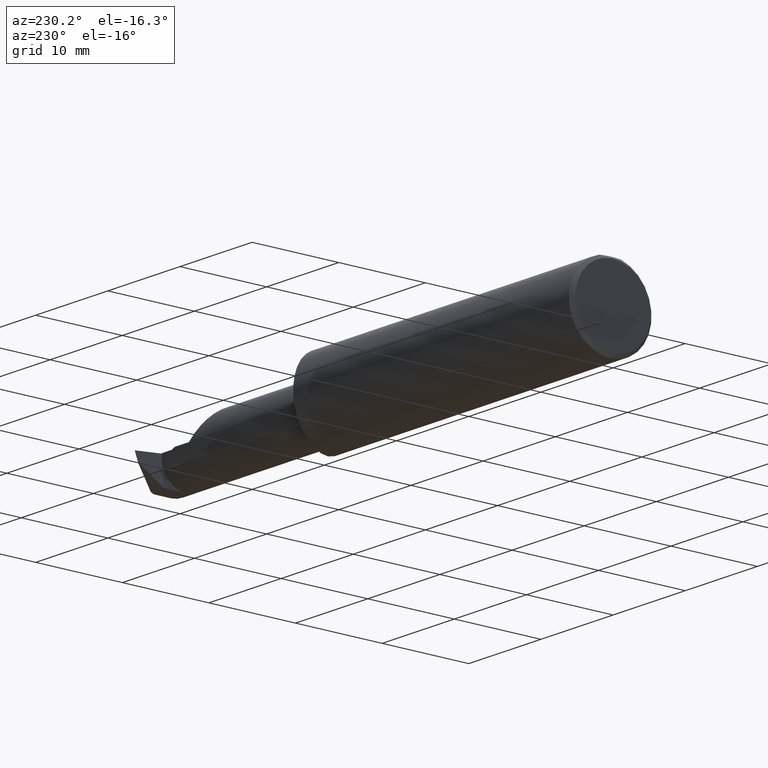
[diagram: clean part render]
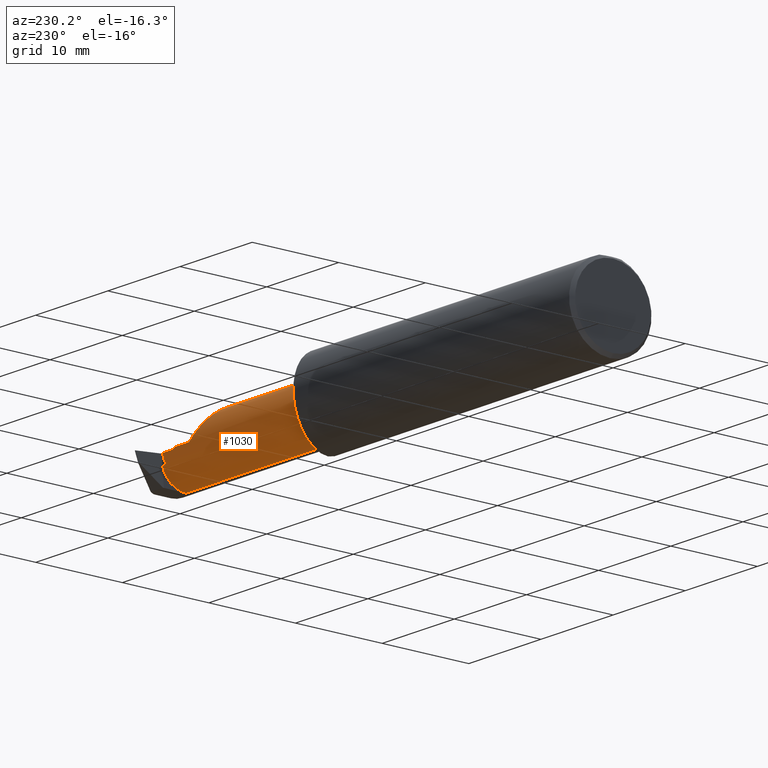
[diagram: same view with one face highlighted and labeled with its STEP entity id]
A machine part, auxiliary view. The second image highlights one B-rep face of the part: STEP entity #1030.
In plain terms, the highlighted cylindrical surface (edge-blend (fillet) strip) has radius 3.175 mm, axis along (-1, -0, -0).
Its self-contained STEP definition (entity closure, byte-faithful):
#5 = LINE ( 'NONE', #333, #228 ) ;
#11 = VERTEX_POINT ( 'NONE', #324 ) ;
#16 = VECTOR ( 'NONE', #857, 39.37007874015748143 ) ;
#39 = DIRECTION ( 'NONE',  ( 0.000000000000000000, 0.000000000000000000, 1.000000000000000000 ) ) ;
#45 = CARTESIAN_POINT ( 'NONE',  ( 1.655000000000000471, 0.04250931060636813086, -0.04931874660846417846 ) ) ;
#60 = VERTEX_POINT ( 'NONE', #679 ) ;
#94 = EDGE_CURVE ( 'NONE', #1039, #748, #347, .T. ) ;
#106 = AXIS2_PLACEMENT_3D ( 'NONE', #726, #542, #962 ) ;
#112 = VERTEX_POINT ( 'NONE', #342 ) ;
#127 = LINE ( 'NONE', #1014, #293 ) ;
#152 = CARTESIAN_POINT ( 'NONE',  ( 2.327514123660666456, 0.05265000000000019664, -1.851388840639819892E-16 ) ) ;
#153 = CARTESIAN_POINT ( 'NONE',  ( 2.125649999999999373, -0.07234999999999980336, 0.1250000000000000000 ) ) ;
#155 = EDGE_LOOP ( 'NONE', ( #207, #234, #785, #227, #799, #719, #378, #534, #262, #472, #823 ) ) ;
#164 = CIRCLE ( 'NONE', #106, 0.1250000000000000000 ) ;
#169 = CARTESIAN_POINT ( 'NONE',  ( 2.417803995548855944, -0.07234999999999983111, -0.1249999999999999861 ) ) ;
#172 = EDGE_CURVE ( 'NONE', #993, #692, #918, .T. ) ;
#193 = EDGE_CURVE ( 'NONE', #369, #617, #235, .T. ) ;
#194 = VERTEX_POINT ( 'NONE', #351 ) ;
#198 = DIRECTION ( 'NONE',  ( 1.000000000000000000, 0.000000000000000000, 0.000000000000000000 ) ) ;
#205 = CARTESIAN_POINT ( 'NONE',  ( 2.395411727148820002, 0.05246269245544987053, -0.006840453349105811778 ) ) ;
#207 = ORIENTED_EDGE ( 'NONE', *, *, #540, .F. ) ;
#227 = ORIENTED_EDGE ( 'NONE', *, *, #555, .F. ) ;
#228 = VECTOR ( 'NONE', #663, 39.37007874015748143 ) ;
#234 = ORIENTED_EDGE ( 'NONE', *, *, #94, .T. ) ;
#235 =( BOUNDED_CURVE ( )  B_SPLINE_CURVE ( 3, ( #937, #845, #355, #205 ),
 .UNSPECIFIED., .F., .T. ) 
 B_SPLINE_CURVE_WITH_KNOTS ( ( 4, 4 ),
 ( 1.165218286355578226, 1.516045349879689086 ),
 .UNSPECIFIED. ) 
 CURVE ( )  GEOMETRIC_REPRESENTATION_ITEM ( )  RATIONAL_B_SPLINE_CURVE ( ( 1.000000000000000000, 0.9897696369758307577, 0.9897696369758307577, 1.000000000000000000 ) ) 
 REPRESENTATION_ITEM ( '' )  );
#262 = ORIENTED_EDGE ( 'NONE', *, *, #989, .T. ) ;
#271 = DIRECTION ( 'NONE',  ( -1.000000000000000000, -0.000000000000000000, -0.000000000000000000 ) ) ;
#286 = CARTESIAN_POINT ( 'NONE',  ( 2.343327320590187224, 0.05246269245544993992, -0.006840453349105718103 ) ) ;
#293 = VECTOR ( 'NONE', #1021, 39.37007874015748143 ) ;
#297 = CARTESIAN_POINT ( 'NONE',  ( 2.387538840845807808, 0.04250931060636629899, -0.04931874660846839037 ) ) ;
#298 = CARTESIAN_POINT ( 'NONE',  ( 2.417803995548855944, -0.07234999999999983111, -0.1249999999999999861 ) ) ;
#312 = CARTESIAN_POINT ( 'NONE',  ( 2.343327320590187224, 0.05246269245544993992, -0.006840453349105718103 ) ) ;
#324 = CARTESIAN_POINT ( 'NONE',  ( 2.250000000000000000, 0.05264830998857562838, 0.0006500000000000630707 ) ) ;
#330 = CARTESIAN_POINT ( 'NONE',  ( 2.413116357483704011, 0.02218362602543400702, -0.09665559677423322948 ) ) ;
#333 = CARTESIAN_POINT ( 'NONE',  ( 1.655000000000000249, -0.07234999999999980336, 0.1250000000000000000 ) ) ;
#334 =( BOUNDED_CURVE ( )  B_SPLINE_CURVE ( 3, ( #153, #1027, #654, #896 ),
 .UNSPECIFIED., .F., .T. ) 
 B_SPLINE_CURVE_WITH_KNOTS ( ( 4, 4 ),
 ( 0.000000000000000000, 1.565596303359943819 ),
 .UNSPECIFIED. ) 
 CURVE ( )  GEOMETRIC_REPRESENTATION_ITEM ( )  RATIONAL_B_SPLINE_CURVE ( ( 1.000000000000000000, 0.8059619166604294893, 0.8059619166604294893, 1.000000000000000000 ) ) 
 REPRESENTATION_ITEM ( '' )  );
#342 = CARTESIAN_POINT ( 'NONE',  ( 1.665355339059327200, -0.07234999999999980336, 0.1250000000000000000 ) ) ;
#347 = LINE ( 'NONE', #996, #377 ) ;
#351 = CARTESIAN_POINT ( 'NONE',  ( 2.407893287419842210, 0.04250931060637284237, -0.04931874660846988917 ) ) ;
#355 = CARTESIAN_POINT ( 'NONE',  ( 2.392692572612126423, 0.05165862385443211607, -0.02151169835146384338 ) ) ;
#368 = DIRECTION ( 'NONE',  ( 0.000000000000000000, 0.000000000000000000, 1.000000000000000000 ) ) ;
#369 = VERTEX_POINT ( 'NONE', #297 ) ;
#377 = VECTOR ( 'NONE', #271, 39.37007874015748143 ) ;
#378 = ORIENTED_EDGE ( 'NONE', *, *, #172, .T. ) ;
#394 = B_SPLINE_CURVE_WITH_KNOTS ( 'NONE', 3,
 ( #152, #473, #860, #312 ),
 .UNSPECIFIED., .F., .F.,
 ( 4, 4 ),
 ( 0.01461800052416073470, 0.01505263715586578795 ),
 .UNSPECIFIED. ) ;
#424 = EDGE_CURVE ( 'NONE', #60, #11, #334, .T. ) ;
#446 = CARTESIAN_POINT ( 'NONE',  ( 2.327514123660666456, 0.05265000000000019664, -1.851388840639819892E-16 ) ) ;
#472 = ORIENTED_EDGE ( 'NONE', *, *, #193, .F. ) ;
#473 = CARTESIAN_POINT ( 'NONE',  ( 2.332752267160139947, 0.05265000000004894237, -0.002359682122865592365 ) ) ;
#509 = CARTESIAN_POINT ( 'NONE',  ( 2.416828149966954609, -0.02083387788954078196, -0.1250000000000000278 ) ) ;
#512 =( BOUNDED_CURVE ( )  B_SPLINE_CURVE ( 3, ( #169, #509, #330, #744 ),
 .UNSPECIFIED., .F., .F. ) 
 B_SPLINE_CURVE_WITH_KNOTS ( ( 4, 4 ),
 ( 3.324852225049211185, 4.490070511404791631 ),
 .UNSPECIFIED. ) 
 CURVE ( )  GEOMETRIC_REPRESENTATION_ITEM ( )  RATIONAL_B_SPLINE_CURVE ( ( 1.000000000000000000, 0.8900199543065776542, 0.8900199543065776542, 1.000000000000000000 ) ) 
 REPRESENTATION_ITEM ( '' )  );
#527 = CARTESIAN_POINT ( 'NONE',  ( 1.665355339059327200, -0.07234999999999980336, 0.000000000000000000 ) ) ;
#534 = ORIENTED_EDGE ( 'NONE', *, *, #831, .T. ) ;
#540 = EDGE_CURVE ( 'NONE', #1039, #194, #512, .T. ) ;
#542 = DIRECTION ( 'NONE',  ( -1.000000000000000000, -0.000000000000000000, -0.000000000000000000 ) ) ;
#555 = EDGE_CURVE ( 'NONE', #60, #112, #5, .T. ) ;
#617 = VERTEX_POINT ( 'NONE', #984 ) ;
#622 = CYLINDRICAL_SURFACE ( 'NONE', #657, 0.1250000000000000000 ) ;
#631 = DIRECTION ( 'NONE',  ( 1.000000000000000000, 0.000000000000000000, 0.000000000000000000 ) ) ;
#654 = CARTESIAN_POINT ( 'NONE',  ( 2.177079229028278551, 0.05226911685279674036, 0.07357077097172100288 ) ) ;
#657 = AXIS2_PLACEMENT_3D ( 'NONE', #691, #1006, #39 ) ;
#663 = DIRECTION ( 'NONE',  ( -1.000000000000000000, -0.000000000000000000, -0.000000000000000000 ) ) ;
#679 = CARTESIAN_POINT ( 'NONE',  ( 2.125649999999999373, -0.07234999999999980336, 0.1250000000000000000 ) ) ;
#691 = CARTESIAN_POINT ( 'NONE',  ( 1.655000000000000249, -0.07234999999999980336, 0.000000000000000000 ) ) ;
#692 = VERTEX_POINT ( 'NONE', #446 ) ;
#719 = ORIENTED_EDGE ( 'NONE', *, *, #828, .T. ) ;
#726 = CARTESIAN_POINT ( 'NONE',  ( 2.250000000000000000, -0.07234999999999980336, 0.000000000000000000 ) ) ;
#744 = CARTESIAN_POINT ( 'NONE',  ( 2.407893287419842210, 0.04250931060637284237, -0.04931874660846988917 ) ) ;
#748 = VERTEX_POINT ( 'NONE', #1012 ) ;
#766 = FACE_OUTER_BOUND ( 'NONE', #155, .T. ) ;
#778 = CARTESIAN_POINT ( 'NONE',  ( 2.250000000000000000, 0.05265000000000016889, -6.429183357567478880E-17 ) ) ;
#785 = ORIENTED_EDGE ( 'NONE', *, *, #1041, .T. ) ;
#799 = ORIENTED_EDGE ( 'NONE', *, *, #424, .T. ) ;
#823 = ORIENTED_EDGE ( 'NONE', *, *, #975, .F. ) ;
#828 = EDGE_CURVE ( 'NONE', #11, #993, #164, .T. ) ;
#831 = EDGE_CURVE ( 'NONE', #692, #919, #394, .T. ) ;
#840 = LINE ( 'NONE', #45, #16 ) ;
#845 = CARTESIAN_POINT ( 'NONE',  ( 2.390041152184282591, 0.04830653683766743950, -0.03581748280623584663 ) ) ;
#857 = DIRECTION ( 'NONE',  ( -1.000000000000000000, -0.000000000000000000, -0.000000000000000000 ) ) ;
#860 = CARTESIAN_POINT ( 'NONE',  ( 2.338028997899913364, 0.05258333541732366362, -0.004639170462026991938 ) ) ;
#893 = CIRCLE ( 'NONE', #959, 0.1250000000000000000 ) ;
#896 = CARTESIAN_POINT ( 'NONE',  ( 2.250000000000000000, 0.05264830998857562838, 0.0006500000000000630707 ) ) ;
#918 = LINE ( 'NONE', #923, #938 ) ;
#919 = VERTEX_POINT ( 'NONE', #286 ) ;
#923 = CARTESIAN_POINT ( 'NONE',  ( 1.655000000000000249, 0.05265000000000018970, -6.429183357567480113E-17 ) ) ;
#937 = CARTESIAN_POINT ( 'NONE',  ( 2.387538840845807808, 0.04250931060636629899, -0.04931874660846839037 ) ) ;
#938 = VECTOR ( 'NONE', #198, 39.37007874015748143 ) ;
#959 = AXIS2_PLACEMENT_3D ( 'NONE', #527, #631, #368 ) ;
#962 = DIRECTION ( 'NONE',  ( 0.000000000000000000, 0.000000000000000000, 1.000000000000000000 ) ) ;
#975 = EDGE_CURVE ( 'NONE', #194, #369, #840, .T. ) ;
#984 = CARTESIAN_POINT ( 'NONE',  ( 2.395411727148820002, 0.05246269245544987053, -0.006840453349105811778 ) ) ;
#989 = EDGE_CURVE ( 'NONE', #919, #617, #127, .T. ) ;
#993 = VERTEX_POINT ( 'NONE', #778 ) ;
#996 = CARTESIAN_POINT ( 'NONE',  ( 1.655000000000000249, -0.07234999999999978948, -0.1250000000000000000 ) ) ;
#1006 = DIRECTION ( 'NONE',  ( -1.000000000000000000, -0.000000000000000000, -0.000000000000000000 ) ) ;
#1012 = CARTESIAN_POINT ( 'NONE',  ( 1.665355339059327200, -0.07234999999999978948, -0.1250000000000000000 ) ) ;
#1014 = CARTESIAN_POINT ( 'NONE',  ( 1.655000000000000249, 0.05246269245545003707, -0.006840453349105805707 ) ) ;
#1021 = DIRECTION ( 'NONE',  ( 1.000000000000000000, 0.000000000000000000, 0.000000000000000000 ) ) ;
#1027 = CARTESIAN_POINT ( 'NONE',  ( 2.125649999999998929, 0.0005717568805388748661, 0.1250000000000000278 ) ) ;
#1030 = ADVANCED_FACE ( 'NONE', ( #766 ), #622, .T. ) ;
#1039 = VERTEX_POINT ( 'NONE', #298 ) ;
#1041 = EDGE_CURVE ( 'NONE', #748, #112, #893, .T. ) ;